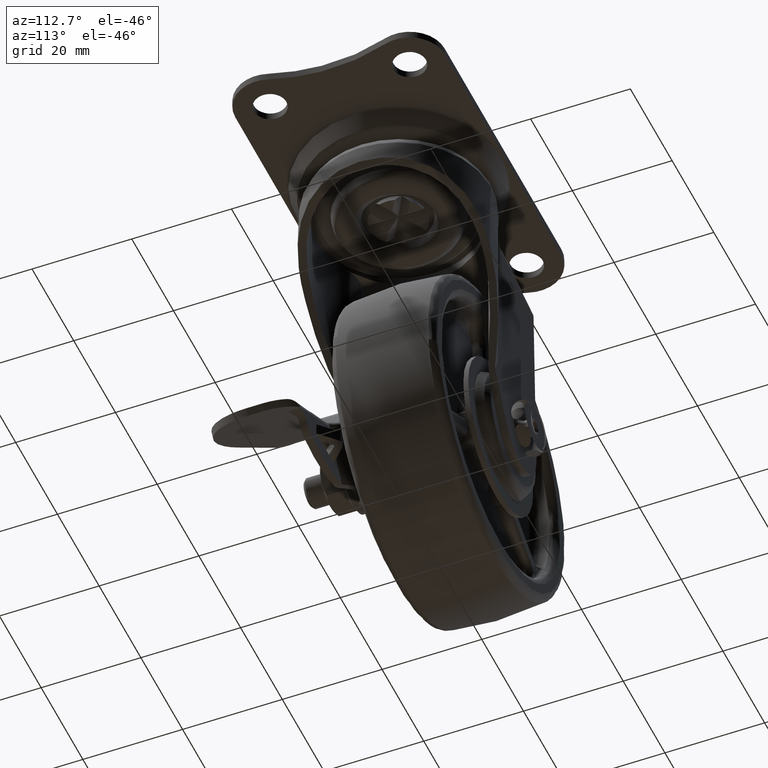
[diagram: clean part render]
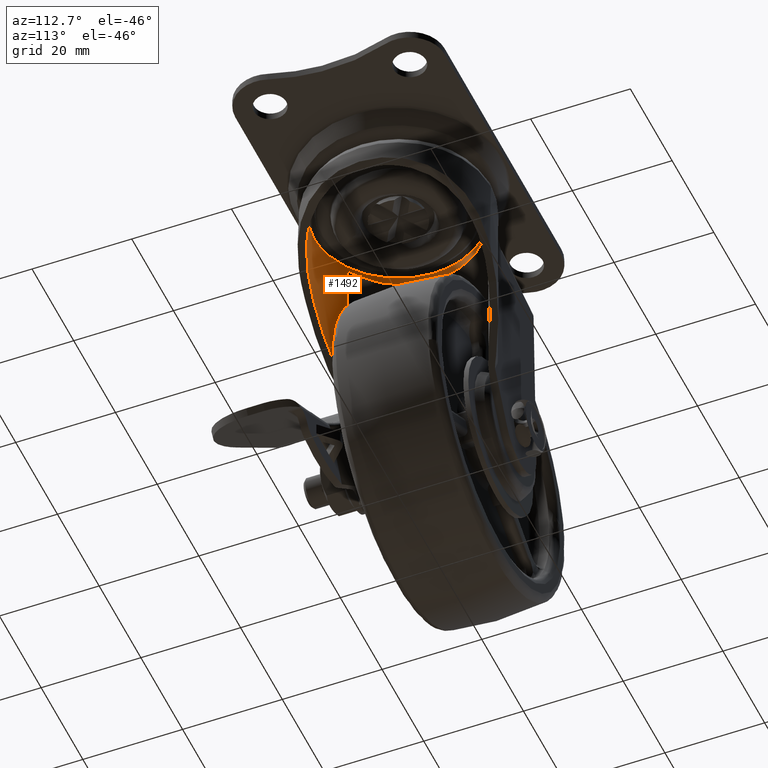
[diagram: same view with one face highlighted and labeled with its STEP entity id]
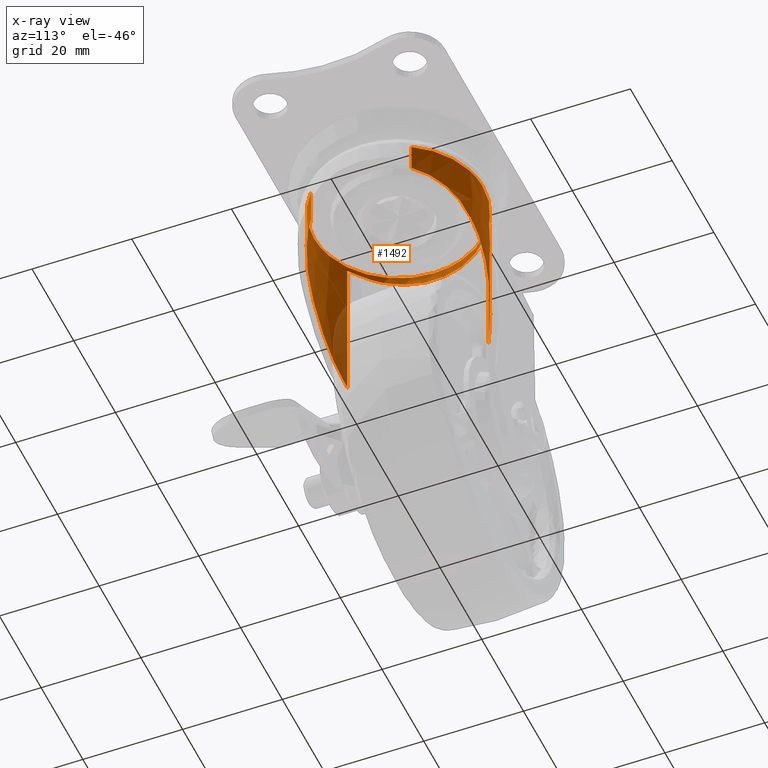
[diagram: x-ray of the same camera — body ghosted, the highlighted face saturated]
A machine part, auxiliary view. The second image highlights one B-rep face of the part: STEP entity #1492.
The next image is the same camera in x-ray: the body ghosted, the highlighted face saturated — about 13% of this face is hidden behind the body in this view.
In plain terms, the highlighted face is a freeform B-spline surface patch.
Its self-contained STEP definition (entity closure, byte-faithful):
#1139=CARTESIAN_POINT('',(11.140173940387101,-12.841214302482211,-14.391718861746410));
#1140=VERTEX_POINT('',#1139);
#1141=CARTESIAN_POINT('',(14.588477235707010,8.727895166466375,-12.626718416115621));
#1142=VERTEX_POINT('',#1141);
#1188=CARTESIAN_POINT('',(11.140165559568610,-12.841204543029219,-6.999995998880346));
#1189=VERTEX_POINT('',#1188);
#1190=CARTESIAN_POINT('',(11.140165559568610,-12.841204543029219,-6.999995998880346));
#1191=CARTESIAN_POINT('',(11.140173940387101,-12.841214302482211,-14.391718861746410));
#1192=QUASI_UNIFORM_CURVE('',1,(#1190,#1191),.UNSPECIFIED.,.F.,.U.);
#1193=EDGE_CURVE('',#1189,#1140,#1192,.T.);
#1217=CARTESIAN_POINT('',(14.588477188839150,8.727895285851540,-6.999995999671821));
#1218=VERTEX_POINT('',#1217);
#1228=CARTESIAN_POINT('',(14.588477188839150,8.727895285851540,-6.999995999671821));
#1229=CARTESIAN_POINT('',(14.588477235707010,8.727895166466375,-12.626718416115621));
#1230=QUASI_UNIFORM_CURVE('',1,(#1228,#1229),.UNSPECIFIED.,.F.,.U.);
#1231=EDGE_CURVE('',#1218,#1142,#1230,.T.);
#1236=CARTESIAN_POINT('',(11.140165510427529,-12.841204585660719,-6.196519014840894));
#1237=CARTESIAN_POINT('',(-1.701039075233188,-23.981370096088234,-6.196519014840895));
#1238=CARTESIAN_POINT('',(-12.841204585660719,-11.140165510427529,-6.196519014840894));
#1239=CARTESIAN_POINT('',(-23.981370096088234,1.701039075233188,-6.196519014840895));
#1240=CARTESIAN_POINT('',(-11.140165510427529,12.841204585660719,-6.196519014840894));
#1241=CARTESIAN_POINT('',(1.701039075233188,23.981370096088234,-6.196519014840895));
#1242=CARTESIAN_POINT('',(12.841204585660719,11.140165510427529,-6.196519014840894));
#1243=CARTESIAN_POINT('',(13.820912967760163,10.010861304215345,-6.196519014840894));
#1244=CARTESIAN_POINT('',(14.588477165905307,8.727895324210316,-6.196519014840894));
#1245=CARTESIAN_POINT('',(11.140165510427529,-12.841204585660719,-39.962639221373969));
#1246=CARTESIAN_POINT('',(-1.701039075233188,-23.981370096088234,-39.962639221373976));
#1247=CARTESIAN_POINT('',(-12.841204585660719,-11.140165510427529,-39.962639221373969));
#1248=CARTESIAN_POINT('',(-23.981370096088234,1.701039075233188,-39.962639221373976));
#1249=CARTESIAN_POINT('',(-11.140165510427529,12.841204585660719,-39.962639221373969));
#1250=CARTESIAN_POINT('',(1.701039075233188,23.981370096088234,-39.962639221373976));
#1251=CARTESIAN_POINT('',(12.841204585660719,11.140165510427529,-39.962639221373969));
#1252=CARTESIAN_POINT('',(13.820912967760163,10.010861304215345,-39.962639221373976));
#1253=CARTESIAN_POINT('',(14.588477165905307,8.727895324210316,-39.962639221373962));
#1261=(BOUNDED_SURFACE()B_SPLINE_SURFACE(2,1,((#1236,#1245),(#1237,#1246),(#1238,#1247),(#1239,#1248),(#1240,#1249),(#1241,#1250),(#1242,#1251),(#1243,#1252),(#1244,#1253)),.UNSPECIFIED.,.F.,.F.,.U.)B_SPLINE_SURFACE_WITH_KNOTS((3,2,2,2,3),(2,2),(0.0,28.166513606746939,56.333027213493871,84.499540820240810,87.879522453050441),(0.0,33.766120206533081),.UNSPECIFIED.)GEOMETRIC_REPRESENTATION_ITEM()RATIONAL_B_SPLINE_SURFACE(((1.0,1.0),(0.707106781186548,0.707106781186548),(1.0,1.0),(0.707106781186548,0.707106781186548),(1.0,1.0),(0.707106781186548,0.707106781186548),(1.0,1.0),(0.964852813742386,0.964852813742386),(0.938140952186599,0.938140952186599)))REPRESENTATION_ITEM('')SURFACE());
#1262=CARTESIAN_POINT('',(-3.553000000000000,16.624560559921949,-29.039908999999898));
#1263=VERTEX_POINT('',#1262);
#1264=CARTESIAN_POINT('',(14.588477235707010,8.727895166466375,-12.626718416115621));
#1265=CARTESIAN_POINT('',(14.503446217916080,8.870022206251649,-12.665165130839190));
#1266=CARTESIAN_POINT('',(14.416280116162220,9.011002991542009,-12.704935553671911));
#1267=CARTESIAN_POINT('',(14.225875686077559,9.309114221139339,-12.792679910379929));
#1268=CARTESIAN_POINT('',(14.122607018466701,9.465010681249513,-12.840781606092261));
#1269=CARTESIAN_POINT('',(13.806724747596309,9.925356798113072,-12.989634710873871));
#1270=CARTESIAN_POINT('',(13.588040703654160,10.222470213652199,-13.094929820623889));
#1271=CARTESIAN_POINT('',(12.909288945950850,11.085385938906599,-13.430002698321880));
#1272=CARTESIAN_POINT('',(12.426581097871130,11.622845821113239,-13.678900892796801));
#1273=CARTESIAN_POINT('',(11.662149767809851,12.374237091466410,-14.095782920583710));
#1274=CARTESIAN_POINT('',(11.400594325251070,12.615545647772629,-14.242016076787809));
#1275=CARTESIAN_POINT('',(11.065632693984080,12.905791363127790,-14.434576920927400));
#1276=CARTESIAN_POINT('',(10.998184729414680,12.963315416149101,-14.473610027669350));
#1277=CARTESIAN_POINT('',(10.862954014864490,13.076843805412480,-14.552404342020450));
#1278=CARTESIAN_POINT('',(10.659491860750579,13.244959682212791,-14.671752138105090));
#1279=CARTESIAN_POINT('',(10.454260727200881,13.406647545960229,-14.794590720994600));
#1280=CARTESIAN_POINT('',(9.766557986265077,13.931737260408010,-15.211913968854709));
#1281=CARTESIAN_POINT('',(9.204938013269533,14.307545492986421,-15.570902724025650));
#1282=CARTESIAN_POINT('',(8.350886008400504,14.811203610789120,-16.149405149059650));
#1283=CARTESIAN_POINT('',(8.064253174842140,14.969056597011321,-16.348914338398199));
#1284=CARTESIAN_POINT('',(7.631994311497455,15.191403341948320,-16.658525979275201));
#1285=CARTESIAN_POINT('',(7.487522647654957,15.263112457899780,-16.763454805287751));
#1286=CARTESIAN_POINT('',(7.197906343869715,15.401809683713109,-16.976821871755451));
#1287=CARTESIAN_POINT('',(7.052557797483958,15.468886963848989,-17.085415578599921));
#1288=CARTESIAN_POINT('',(6.327065693506603,15.791501717433130,-17.635261089109161));
#1289=CARTESIAN_POINT('',(5.752336888834996,16.008281094089799,-18.095810065027660));
#1290=CARTESIAN_POINT('',(4.618082902407465,16.371553185213099,-19.058456094907591));
#1291=CARTESIAN_POINT('',(4.058544864512004,16.517999766350169,-19.560554255915619));
#1292=CARTESIAN_POINT('',(3.233116755442915,16.692089325299900,-20.345250454026029));
#1293=CARTESIAN_POINT('',(2.960284161379051,16.742505494256790,-20.612076343378309));
#1294=CARTESIAN_POINT('',(2.554793408729621,16.807486077252751,-21.020274904209959));
#1295=CARTESIAN_POINT('',(2.420562587274306,16.827320706935339,-21.157361784681669));
#1296=CARTESIAN_POINT('',(2.154481863181958,16.863453187590981,-21.433037029967458));
#1297=CARTESIAN_POINT('',(2.022548691174443,16.879764449584609,-21.571709079689089));
#1298=CARTESIAN_POINT('',(1.368388203713099,16.953012706088948,-22.269224309753788));
#1299=CARTESIAN_POINT('',(0.862661809178349,16.985119261660191,-22.840521961928470));
#1300=CARTESIAN_POINT('',(-0.114120949202161,17.006629255713140,-24.009418627040379));
#1301=CARTESIAN_POINT('',(-0.585176508969835,16.996002352568819,-24.607017836698379));
#1302=CARTESIAN_POINT('',(-1.492777148448395,16.940429288199891,-25.828511857168710));
#1303=CARTESIAN_POINT('',(-1.929322152656371,16.895463207434521,-26.452406446099189));
#1304=CARTESIAN_POINT('',(-2.558107695959043,16.807756896343399,-27.408162919297322));
#1305=CARTESIAN_POINT('',(-2.763361419197517,16.775138601959519,-27.730069585549550));
#1306=CARTESIAN_POINT('',(-3.165126929467391,16.703993932098570,-28.380583141646959));
#1307=CARTESIAN_POINT('',(-3.361850946149240,16.665412918447721,-28.709584872629890));
#1308=CARTESIAN_POINT('',(-3.553000000000000,16.624560559921949,-29.039908999999898));
#1309=B_SPLINE_CURVE_WITH_KNOTS('',3,(#1264,#1265,#1266,#1267,#1268,#1269,#1270,#1271,#1272,#1273,#1274,#1275,#1276,#1277,#1278,#1279,#1280,#1281,#1282,#1283,#1284,#1285,#1286,#1287,#1288,#1289,#1290,#1291,#1292,#1293,#1294,#1295,#1296,#1297,#1298,#1299,#1300,#1301,#1302,#1303,#1304,#1305,#1306,#1307,#1308),.UNSPECIFIED.,.F.,.U.,(4,2,2,2,2,2,2,1,2,2,2,2,2,2,2,2,2,2,2,2,2,2,4),(0.625921255930154,0.632812499999998,0.640624999999998,0.656249999999998,0.687499999999997,0.703124999999997,0.707031249999997,0.710937499999997,0.718749999999997,0.749999999999997,0.765624999999998,0.773437499999998,0.781249999999998,0.812499999999998,0.843749999999998,0.859374999999998,0.867187499999998,0.874999999999998,0.906249999999999,0.937499999999999,0.968750000000000,0.984375000000000,1.0),.UNSPECIFIED.);
#1310=EDGE_CURVE('',#1142,#1263,#1309,.T.);
#1311=ORIENTED_EDGE('',*,*,#1310,.F.);
#1312=ORIENTED_EDGE('',*,*,#1231,.F.);
#1313=CARTESIAN_POINT('',(0.427211491715613,16.994626008002029,-6.999995997744716));
#1314=VERTEX_POINT('',#1313);
#1315=CARTESIAN_POINT('',(14.588477188839150,8.727895285851540,-6.999995999671821));
#1316=CARTESIAN_POINT('',(14.085255532821680,9.569186043251580,-6.999995999603346));
#1317=CARTESIAN_POINT('',(12.958866222889210,11.128043829420211,-6.999995999450049));
#1318=CARTESIAN_POINT('',(11.012461088404820,13.038583202957000,-6.999995999185192));
#1319=CARTESIAN_POINT('',(8.690203749677499,14.706160403997121,-6.999995998869157));
#1320=CARTESIAN_POINT('',(6.315779053445747,15.863997591098890,-6.999995998546075));
#1321=CARTESIAN_POINT('',(3.451386671026335,16.726426581238119,-6.999995998156197));
#1322=CARTESIAN_POINT('',(1.585405163924669,16.965696368733809,-6.999995997902386));
#1323=CARTESIAN_POINT('',(0.427211491715613,16.994626008002029,-6.999995997744716));
#1324=B_SPLINE_CURVE_WITH_KNOTS('',3,(#1315,#1316,#1317,#1318,#1319,#1320,#1321,#1322,#1323),.UNSPECIFIED.,.F.,.U.,(4,1,1,1,1,1,4),(0.000000038978662,2.940912303704051,5.748168026025006,8.154370117336695,11.496305928512379,13.635163003800949,17.110789427415909),.UNSPECIFIED.);
#1325=EDGE_CURVE('',#1218,#1314,#1324,.T.);
#1326=ORIENTED_EDGE('',*,*,#1325,.T.);
#1327=CARTESIAN_POINT('',(-16.999994788543699,0.0,-6.999995999999999));
#1328=VERTEX_POINT('',#1327);
#1329=CARTESIAN_POINT('',(0.427211491715613,16.994626008002029,-6.999995997744716));
#1330=CARTESIAN_POINT('',(-1.020744669560221,17.031429272421420,-6.999995998068947));
#1331=CARTESIAN_POINT('',(-3.429755642875168,16.782568067375959,-6.999995998578986));
#1332=CARTESIAN_POINT('',(-6.194072448747934,15.882791154182090,-6.999995999106409));
#1333=CARTESIAN_POINT('',(-8.399033854873682,14.838227359638941,-6.999995999496111));
#1334=CARTESIAN_POINT('',(-10.424799007976629,13.530239861970330,-6.999995999821375));
#1335=CARTESIAN_POINT('',(-12.541627641072941,11.590940357749330,-6.999996000107178));
#1336=CARTESIAN_POINT('',(-14.027108932670959,9.692289799658930,-6.999996000256739));
#1337=CARTESIAN_POINT('',(-15.231133557644631,7.651498459024479,-6.999996000330843));
#1338=CARTESIAN_POINT('',(-16.047188962203549,5.765290909054672,-6.999996000333435));
#1339=CARTESIAN_POINT('',(-16.794777181146330,3.108638713194771,-6.999996000248131));
#1340=CARTESIAN_POINT('',(-17.000226329532222,1.236447485301935,-6.999996000116803));
#1341=CARTESIAN_POINT('',(-16.999994788543699,0.0,-6.999995999999999));
#1342=B_SPLINE_CURVE_WITH_KNOTS('',3,(#1329,#1330,#1331,#1332,#1333,#1334,#1335,#1336,#1337,#1338,#1339,#1340,#1341),.UNSPECIFIED.,.F.,.U.,(4,1,1,1,1,1,1,1,1,1,4),(0.000000086284434,4.345159766621880,7.206628333184966,8.690360126159753,11.657790674308810,14.413206292263441,17.274686279690808,18.864392796960420,21.513902501633691,23.421558422556860,27.130829772568120),.UNSPECIFIED.);
#1343=EDGE_CURVE('',#1314,#1328,#1342,.T.);
#1344=ORIENTED_EDGE('',*,*,#1343,.T.);
#1345=CARTESIAN_POINT('',(-0.213553601548537,-16.998653407543159,-6.999996000000000));
#1346=VERTEX_POINT('',#1345);
#1347=CARTESIAN_POINT('',(-16.999994788543699,0.0,-6.999995999999999));
#1348=CARTESIAN_POINT('',(-17.000487183516260,-1.517689847619405,-6.999996000100683));
#1349=CARTESIAN_POINT('',(-16.641900977799700,-4.173342598640168,-6.999996000252757));
#1350=CARTESIAN_POINT('',(-15.256641703798319,-7.763356711486848,-6.999996000397764));
#1351=CARTESIAN_POINT('',(-13.491631796612280,-10.503789930961620,-6.999996000461038));
#1352=CARTESIAN_POINT('',(-11.279354392969941,-12.841604100035131,-6.999996000467450));
#1353=CARTESIAN_POINT('',(-8.597850051895561,-14.810988882260199,-6.999996000418028));
#1354=CARTESIAN_POINT('',(-5.749731749547479,-16.094599430741070,-6.999996000311554));
#1355=CARTESIAN_POINT('',(-2.867385933443265,-16.820841338775939,-6.999996000167141));
#1356=CARTESIAN_POINT('',(-1.179261311812199,-16.986604375344971,-6.999996000063275));
#1357=CARTESIAN_POINT('',(-0.213553601548537,-16.998653407543159,-6.999996000000000));
#1358=B_SPLINE_CURVE_WITH_KNOTS('',3,(#1347,#1348,#1349,#1350,#1351,#1352,#1353,#1354,#1355,#1356,#1357),.UNSPECIFIED.,.F.,.U.,(4,1,1,1,1,1,1,1,4),(0.000000081721168,4.552956545344262,7.967708261146616,11.485930222194090,14.279727717226089,17.591003991742991,21.419663170144151,23.592671264208310,26.490011043928568),.UNSPECIFIED.);
#1359=EDGE_CURVE('',#1328,#1346,#1358,.T.);
#1360=ORIENTED_EDGE('',*,*,#1359,.T.);
#1361=CARTESIAN_POINT('',(-0.213553601548537,-16.998653407543159,-6.999996000000000));
#1362=CARTESIAN_POINT('',(1.009645214107003,-17.014245201003561,-6.999995999910079));
#1363=CARTESIAN_POINT('',(2.750112128853593,-16.847398357798919,-6.999995999769578));
#1364=CARTESIAN_POINT('',(5.186273726664687,-16.228525284050281,-6.999995999547479));
#1365=CARTESIAN_POINT('',(6.875834224212128,-15.587995371513459,-6.999995999379304));
#1366=CARTESIAN_POINT('',(8.995395013742931,-14.495314025736279,-6.999995999149534));
#1367=CARTESIAN_POINT('',(10.313500244702819,-13.558566115942000,-6.999995998989172));
#1368=CARTESIAN_POINT('',(11.140165559568610,-12.841204543029219,-6.999995998880346));
#1369=B_SPLINE_CURVE_WITH_KNOTS('',3,(#1361,#1362,#1363,#1364,#1365,#1366,#1367,#1368),.UNSPECIFIED.,.F.,.U.,(4,1,1,1,1,4),(4.797933E-009,3.669840755494628,5.215037729872618,7.532829774950129,9.078026739216485,12.361568347372270),.UNSPECIFIED.);
#1370=EDGE_CURVE('',#1346,#1189,#1369,.T.);
#1371=ORIENTED_EDGE('',*,*,#1370,.T.);
#1372=ORIENTED_EDGE('',*,*,#1193,.T.);
#1373=CARTESIAN_POINT('',(-3.553000000000000,-16.624560559921999,-29.039908999999898));
#1374=VERTEX_POINT('',#1373);
#1375=CARTESIAN_POINT('',(-3.553000000000000,-16.624560559921999,-29.039908999999898));
#1376=CARTESIAN_POINT('',(-3.173274881444763,-16.705715122637269,-28.383706579770081));
#1377=CARTESIAN_POINT('',(-2.773413580314795,-16.777620898271380,-27.735685085388919));
#1378=CARTESIAN_POINT('',(-2.247338159097944,-16.851128994138481,-26.935727623888209));
#1379=CARTESIAN_POINT('',(-2.140724565383959,-16.865018137792781,-26.776118110019588));
#1380=CARTESIAN_POINT('',(-1.925482200537242,-16.890945832815270,-26.458849643084999));
#1381=CARTESIAN_POINT('',(-1.599465934871664,-16.927083761884958,-25.985663756784010));
#1382=CARTESIAN_POINT('',(-1.264044515796754,-16.954469103961362,-25.520597922452691));
#1383=CARTESIAN_POINT('',(-0.580775548131452,-16.996196962657130,-24.601236509725130));
#1384=CARTESIAN_POINT('',(-0.108703505163711,-17.006663590704029,-24.002680805277500));
#1385=CARTESIAN_POINT('',(0.868172317944812,-16.984836498353481,-22.834178112287830));
#1386=CARTESIAN_POINT('',(1.372976847289048,-16.952568998947878,-22.264231005954439));
#1387=CARTESIAN_POINT('',(2.154647512573308,-16.864931102916870,-21.430899366521459));
#1388=CARTESIAN_POINT('',(2.419283771471721,-16.829164679004890,-21.156722453920700));
#1389=CARTESIAN_POINT('',(2.822364341226440,-16.764618033430679,-20.750893788929691));
#1390=CARTESIAN_POINT('',(2.957745682126773,-16.741284967753160,-20.616523823956619));
#1391=CARTESIAN_POINT('',(3.230553272636019,-16.690787841168721,-20.349604155414390));
#1392=CARTESIAN_POINT('',(3.368131073631572,-16.663588755157480,-20.216913645684691));
#1393=CARTESIAN_POINT('',(4.057814974039562,-16.518222959316962,-19.561163669081900));
#1394=CARTESIAN_POINT('',(4.617139870578875,-16.371727459381962,-19.059351025167501));
#1395=CARTESIAN_POINT('',(5.747026051177637,-16.010093552488438,-18.100212371213509));
#1396=CARTESIAN_POINT('',(6.317599806112771,-15.794990354230119,-17.642885788913670));
#1397=CARTESIAN_POINT('',(7.178585747661055,-15.413175323906209,-16.989675119388959));
#1398=CARTESIAN_POINT('',(7.466430253752884,-15.276024501008459,-16.777403865815891));
#1399=CARTESIAN_POINT('',(7.898993023306871,-15.054289819824600,-16.467145995160301));
#1400=CARTESIAN_POINT('',(8.043312751093783,-14.977708353624930,-16.365085047182280));
#1401=CARTESIAN_POINT('',(8.259925300763815,-14.858663824290010,-16.214026624918549));
#1402=CARTESIAN_POINT('',(8.332177794201042,-14.818270424973360,-16.163995381304979));
#1403=CARTESIAN_POINT('',(8.476158178870820,-14.736385692299420,-16.064990357823341));
#1404=CARTESIAN_POINT('',(8.547953433012570,-14.694857987597320,-16.015969265656331));
#1405=CARTESIAN_POINT('',(9.192302601276815,-14.315815742308860,-15.579056522586930));
#1406=CARTESIAN_POINT('',(9.752232485082626,-13.941323805419740,-15.221058781624320));
#1407=CARTESIAN_POINT('',(10.582074239502109,-13.309706122876859,-14.716794778968140));
#1408=CARTESIAN_POINT('',(10.863625291719311,-13.081131572043370,-14.550619447356810));
#1409=CARTESIAN_POINT('',(11.140173940387101,-12.841214302482211,-14.391718861746410));
#1410=B_SPLINE_CURVE_WITH_KNOTS('',3,(#1375,#1376,#1377,#1378,#1379,#1380,#1381,#1382,#1383,#1384,#1385,#1386,#1387,#1388,#1389,#1390,#1391,#1392,#1393,#1394,#1395,#1396,#1397,#1398,#1399,#1400,#1401,#1402,#1403,#1404,#1405,#1406,#1407,#1408,#1409),.UNSPECIFIED.,.F.,.U.,(4,2,2,1,2,2,2,2,2,2,2,2,2,2,2,2,2,4),(0.0,0.031250000000000,0.039062500000000,0.046875000000000,0.062500000000000,0.093750000000000,0.125000000000000,0.140625000000000,0.148437500000000,0.156250000000000,0.187500000000000,0.218750000000000,0.234375000000000,0.242187500000000,0.246093750000000,0.250000000000000,0.281250000000000,0.297683043330390),.UNSPECIFIED.);
#1411=EDGE_CURVE('',#1374,#1140,#1410,.T.);
#1412=ORIENTED_EDGE('',*,*,#1411,.F.);
#1413=CARTESIAN_POINT('',(-9.397096054375220,-14.166665399992979,-39.139075313897550));
#1414=VERTEX_POINT('',#1413);
#1415=CARTESIAN_POINT('',(-9.397096054375222,-14.166665399992979,-39.139075313897600));
#1416=CARTESIAN_POINT('',(-6.708299139451029,-15.950210233363796,-34.492572762355010));
#1417=CARTESIAN_POINT('',(-3.552999999999997,-16.624560559921971,-29.039908999999898));
#1425=(BOUNDED_CURVE()B_SPLINE_CURVE(2,(#1415,#1416,#1417),.UNSPECIFIED.,.F.,.U.)CURVE()GEOMETRIC_REPRESENTATION_ITEM()QUASI_UNIFORM_CURVE()RATIONAL_B_SPLINE_CURVE((1.0,0.982460925751320,1.0))REPRESENTATION_ITEM(''));
#1426=EDGE_CURVE('',#1414,#1374,#1425,.T.);
#1427=ORIENTED_EDGE('',*,*,#1426,.F.);
#1428=CARTESIAN_POINT('',(-9.397096054375220,-14.166665399992979,-7.987479055953100));
#1429=VERTEX_POINT('',#1428);
#1430=CARTESIAN_POINT('',(-9.397096054375220,-14.166665399992979,-39.139075313897550));
#1431=CARTESIAN_POINT('',(-9.397096054375220,-14.166665399992979,-7.987479055953100));
#1432=QUASI_UNIFORM_CURVE('',1,(#1430,#1431),.UNSPECIFIED.,.F.,.U.);
#1433=EDGE_CURVE('',#1414,#1429,#1432,.T.);
#1434=ORIENTED_EDGE('',*,*,#1433,.T.);
#1435=CARTESIAN_POINT('',(-11.592670000000000,-12.434219922520780,-7.987479055953100));
#1436=VERTEX_POINT('',#1435);
#1437=CARTESIAN_POINT('',(-11.592670000000000,-12.434219922520780,-7.987479055953100));
#1438=CARTESIAN_POINT('',(-10.910055372073900,-13.070704610403970,-7.987479055953074));
#1439=CARTESIAN_POINT('',(-10.174876342606449,-13.650786979185250,-7.987479055953110));
#1440=CARTESIAN_POINT('',(-9.397096054375220,-14.166665399992979,-7.987479055953100));
#1441=B_SPLINE_CURVE_WITH_KNOTS('',3,(#1437,#1438,#1439,#1440),.UNSPECIFIED.,.F.,.U.,(4,4),(5.738250E-010,2.799944181407861),.UNSPECIFIED.);
#1442=EDGE_CURVE('',#1436,#1429,#1441,.T.);
#1443=ORIENTED_EDGE('',*,*,#1442,.F.);
#1444=CARTESIAN_POINT('',(-11.592670000000000,12.434219922521020,-7.987479055953130));
#1445=VERTEX_POINT('',#1444);
#1446=CARTESIAN_POINT('',(-11.592670000000000,12.434219922521020,-7.987479055953130));
#1447=CARTESIAN_POINT('',(-16.999994788543670,7.392863709826735,-8.940936222666915));
#1448=CARTESIAN_POINT('',(-16.999994788543670,1.853520E-013,-8.940936222666913));
#1449=CARTESIAN_POINT('',(-16.999994788543670,-7.392863709826518,-8.940936222666915));
#1450=CARTESIAN_POINT('',(-11.592670000000000,-12.434219922520770,-7.987479055953135));
#1458=(BOUNDED_CURVE()B_SPLINE_CURVE(2,(#1446,#1447,#1448,#1449,#1450),.UNSPECIFIED.,.F.,.U.)B_SPLINE_CURVE_WITH_KNOTS((3,2,3),(0.0,0.500000000000000,1.0),.UNSPECIFIED.)CURVE()GEOMETRIC_REPRESENTATION_ITEM()RATIONAL_B_SPLINE_CURVE((1.0,0.917039250455842,1.0,0.917039250455842,1.0))REPRESENTATION_ITEM(''));
#1459=EDGE_CURVE('',#1445,#1436,#1458,.T.);
#1460=ORIENTED_EDGE('',*,*,#1459,.F.);
#1461=CARTESIAN_POINT('',(-9.397096054375220,14.166665399992979,-7.987479055953100));
#1462=VERTEX_POINT('',#1461);
#1463=CARTESIAN_POINT('',(-9.397096054375220,14.166665399992979,-7.987479055953100));
#1464=CARTESIAN_POINT('',(-10.174876376533179,13.650786954106669,-7.987479055953098));
#1465=CARTESIAN_POINT('',(-10.910055331287531,13.070704640121360,-7.987479055953124));
#1466=CARTESIAN_POINT('',(-11.592670000000000,12.434219922521020,-7.987479055953130));
#1467=B_SPLINE_CURVE_WITH_KNOTS('',3,(#1463,#1464,#1465,#1466),.UNSPECIFIED.,.F.,.U.,(4,4),(5.738086E-010,2.799944181407707),.UNSPECIFIED.);
#1468=EDGE_CURVE('',#1462,#1445,#1467,.T.);
#1469=ORIENTED_EDGE('',*,*,#1468,.F.);
#1470=CARTESIAN_POINT('',(-9.397096054375210,14.166665399993001,-39.139075313897550));
#1471=VERTEX_POINT('',#1470);
#1472=CARTESIAN_POINT('',(-9.397096054375220,14.166665399992979,-7.987479055953100));
#1473=CARTESIAN_POINT('',(-9.397096054375210,14.166665399993001,-39.139075313897550));
#1474=QUASI_UNIFORM_CURVE('',1,(#1472,#1473),.UNSPECIFIED.,.F.,.U.);
#1475=EDGE_CURVE('',#1462,#1471,#1474,.T.);
#1476=ORIENTED_EDGE('',*,*,#1475,.T.);
#1477=CARTESIAN_POINT('',(-3.552999999999989,16.624560559921971,-29.039908999999891));
#1478=CARTESIAN_POINT('',(-6.708299139451012,15.950210233363789,-34.492572762354982));
#1479=CARTESIAN_POINT('',(-9.397096054375190,14.166665399993001,-39.139075313897543));
#1487=(BOUNDED_CURVE()B_SPLINE_CURVE(2,(#1477,#1478,#1479),.UNSPECIFIED.,.F.,.U.)CURVE()GEOMETRIC_REPRESENTATION_ITEM()QUASI_UNIFORM_CURVE()RATIONAL_B_SPLINE_CURVE((1.0,0.982460925751328,1.0))REPRESENTATION_ITEM(''));
#1488=EDGE_CURVE('',#1263,#1471,#1487,.T.);
#1489=ORIENTED_EDGE('',*,*,#1488,.F.);
#1490=EDGE_LOOP('',(#1311,#1312,#1326,#1344,#1360,#1371,#1372,#1412,#1427,#1434,#1443,#1460,#1469,#1476,#1489));
#1491=FACE_OUTER_BOUND('',#1490,.T.);
#1492=ADVANCED_FACE('',(#1491),#1261,.F.);